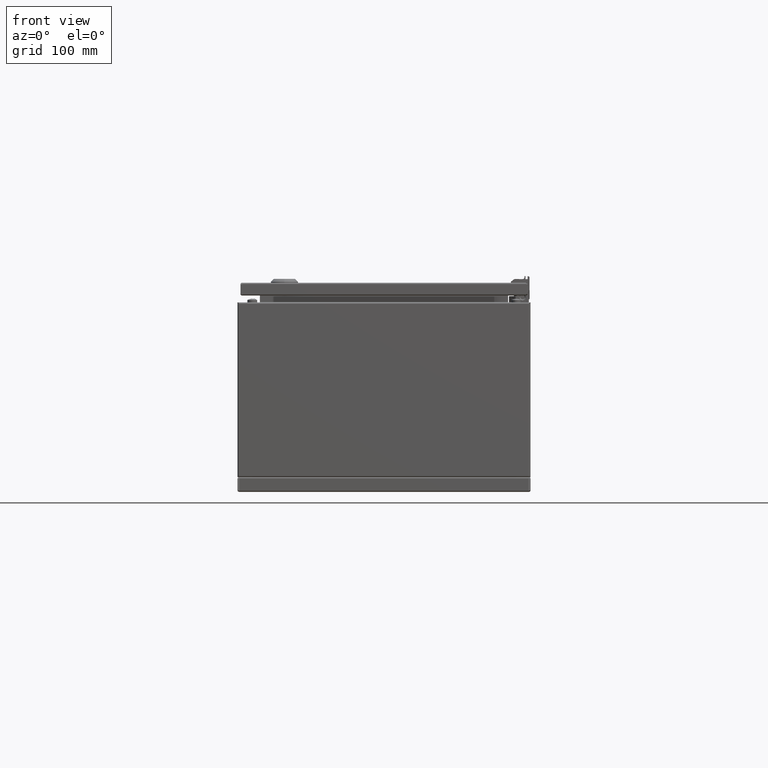
[diagram: clean part render]
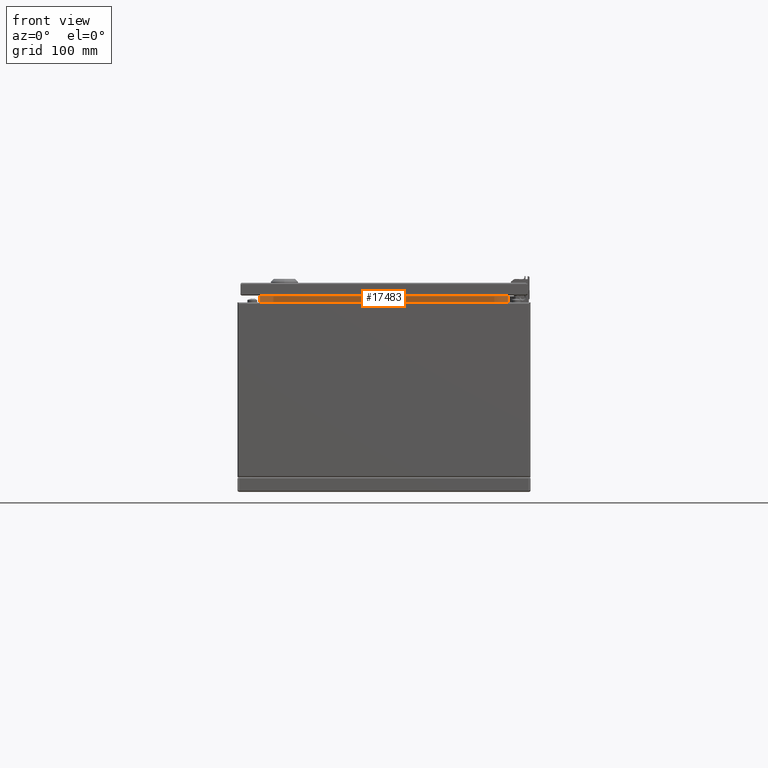
[diagram: same view with one face highlighted and labeled with its STEP entity id]
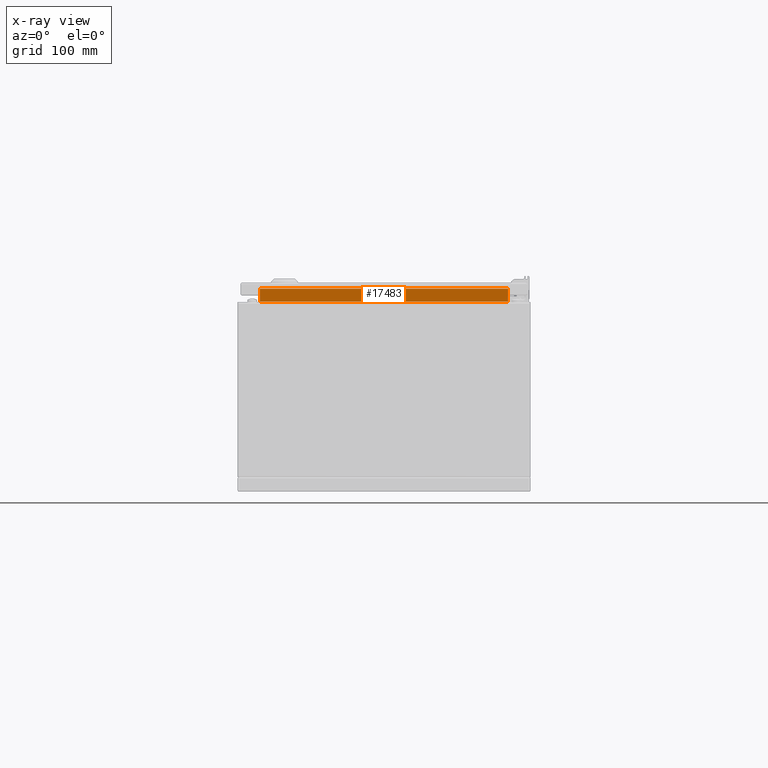
[diagram: x-ray of the same camera — body ghosted, the highlighted face saturated]
A machine part, front view. The second image highlights one B-rep face of the part: STEP entity #17483.
The next image is the same camera in x-ray: the body ghosted, the highlighted face saturated — about 0% of this face is hidden behind the body in this view.
In plain terms, the highlighted planar face has unit normal (-0, -1, -0).
Its self-contained STEP definition (entity closure, byte-faithful):
#13 = EDGE_CURVE ( 'NONE', #7006, #10816, #18328, .T. ) ;
#36 = CARTESIAN_POINT ( 'NONE',  ( 150.0000000000000000, -302.0999999999999700, 15.49999999999975000 ) ) ;
#816 = DIRECTION ( 'NONE',  ( 4.023572721128125300E-025, 3.491481336412970400E-015, -1.000000000000000000 ) ) ;
#1318 = ORIENTED_EDGE ( 'NONE', *, *, #73452, .F. ) ;
#3599 = LINE ( 'NONE', #33259, #42925 ) ;
#4447 = EDGE_CURVE ( 'NONE', #70435, #49753, #81320, .T. ) ;
#5983 = CARTESIAN_POINT ( 'NONE',  ( 127.1000000000011900, -302.0999999999999700, 206.9499999999999900 ) ) ;
#7006 = VERTEX_POINT ( 'NONE', #69503 ) ;
#7429 = FACE_OUTER_BOUND ( 'NONE', #67064, .T. ) ;
#7603 = LINE ( 'NONE', #51183, #74322 ) ;
#7876 = ORIENTED_EDGE ( 'NONE', *, *, #13, .F. ) ;
#10816 = VERTEX_POINT ( 'NONE', #26060 ) ;
#17092 = LINE ( 'NONE', #74899, #61302 ) ;
#17483 = ADVANCED_FACE ( 'NONE', ( #7429 ), #50849, .T. ) ;
#17510 = VECTOR ( 'NONE', #53042, 1000.000000000000000 ) ;
#18328 = LINE ( 'NONE', #5983, #66452 ) ;
#18495 = VERTEX_POINT ( 'NONE', #35794 ) ;
#18660 = EDGE_CURVE ( 'NONE', #18495, #70435, #17092, .T. ) ;
#19666 = DIRECTION ( 'NONE',  ( 1.000000000000000000, -8.187894806610520600E-016, -2.183758895711224900E-016 ) ) ;
#23442 = LINE ( 'NONE', #27988, #32243 ) ;
#25690 = DIRECTION ( 'NONE',  ( -1.000000000000000000, 8.187894806610530500E-016, -4.023544598120580300E-025 ) ) ;
#26000 = EDGE_CURVE ( 'NONE', #49753, #7006, #3599, .T. ) ;
#26060 = CARTESIAN_POINT ( 'NONE',  ( -125.8999999999987800, -302.0999999999999700, 206.9499999999999900 ) ) ;
#27988 = CARTESIAN_POINT ( 'NONE',  ( 127.1000000000011900, -302.0999999999999700, 206.9499999999999900 ) ) ;
#30328 = VERTEX_POINT ( 'NONE', #78256 ) ;
#32127 = EDGE_CURVE ( 'NONE', #30328, #10816, #7603, .T. ) ;
#32243 = VECTOR ( 'NONE', #19666, 1000.000000000000000 ) ;
#33259 = CARTESIAN_POINT ( 'NONE',  ( -127.0999999999988000, -302.0999999999999700, 206.9499999999999900 ) ) ;
#34261 = CARTESIAN_POINT ( 'NONE',  ( 127.1000000000011900, -302.0999999999999700, 193.5000000000000000 ) ) ;
#35794 = CARTESIAN_POINT ( 'NONE',  ( 127.1000000000011900, -302.0999999999999700, 206.9499999999999900 ) ) ;
#40203 = ORIENTED_EDGE ( 'NONE', *, *, #32127, .T. ) ;
#42925 = VECTOR ( 'NONE', #46402, 1000.000000000000000 ) ;
#46402 = DIRECTION ( 'NONE',  ( -4.023572721128125300E-025, -3.491481336412970400E-015, 1.000000000000000000 ) ) ;
#49753 = VERTEX_POINT ( 'NONE', #57707 ) ;
#49885 = DIRECTION ( 'NONE',  ( 1.000000000000000000, -8.187894806610520600E-016, -2.183758895711224900E-016 ) ) ;
#50038 = DIRECTION ( 'NONE',  ( 1.000000000000000000, -8.187894806610530500E-016, 4.023544598120580300E-025 ) ) ;
#50849 = PLANE ( 'NONE',  #54873 ) ;
#51183 = CARTESIAN_POINT ( 'NONE',  ( 125.9000000000012000, -302.0999999999999700, 206.9499999999999900 ) ) ;
#53042 = DIRECTION ( 'NONE',  ( -1.000000000000000000, 8.187894806610530500E-016, 1.091879445843839900E-016 ) ) ;
#54873 = AXIS2_PLACEMENT_3D ( 'NONE', #36, #69990, #50038 ) ;
#57707 = CARTESIAN_POINT ( 'NONE',  ( -127.0999999999988000, -302.0999999999999700, 193.5000000000000000 ) ) ;
#59916 = CARTESIAN_POINT ( 'NONE',  ( 127.1000000000011900, -302.0999999999999700, 193.5000000000000000 ) ) ;
#61302 = VECTOR ( 'NONE', #816, 1000.000000000000000 ) ;
#63171 = ORIENTED_EDGE ( 'NONE', *, *, #4447, .F. ) ;
#64687 = ORIENTED_EDGE ( 'NONE', *, *, #18660, .F. ) ;
#66452 = VECTOR ( 'NONE', #49885, 1000.000000000000000 ) ;
#67064 = EDGE_LOOP ( 'NONE', ( #67612, #63171, #64687, #1318, #40203, #7876 ) ) ;
#67612 = ORIENTED_EDGE ( 'NONE', *, *, #26000, .F. ) ;
#69503 = CARTESIAN_POINT ( 'NONE',  ( -127.0999999999988000, -302.0999999999999700, 206.9499999999999900 ) ) ;
#69990 = DIRECTION ( 'NONE',  ( -8.187894806610530500E-016, -1.000000000000000000, -3.491481336412970400E-015 ) ) ;
#70435 = VERTEX_POINT ( 'NONE', #34261 ) ;
#73452 = EDGE_CURVE ( 'NONE', #30328, #18495, #23442, .T. ) ;
#74322 = VECTOR ( 'NONE', #25690, 1000.000000000000000 ) ;
#74899 = CARTESIAN_POINT ( 'NONE',  ( 127.1000000000011900, -302.0999999999999700, 193.0000000000000000 ) ) ;
#78256 = CARTESIAN_POINT ( 'NONE',  ( 125.9000000000012000, -302.0999999999999700, 206.9499999999999900 ) ) ;
#81320 = LINE ( 'NONE', #59916, #17510 ) ;